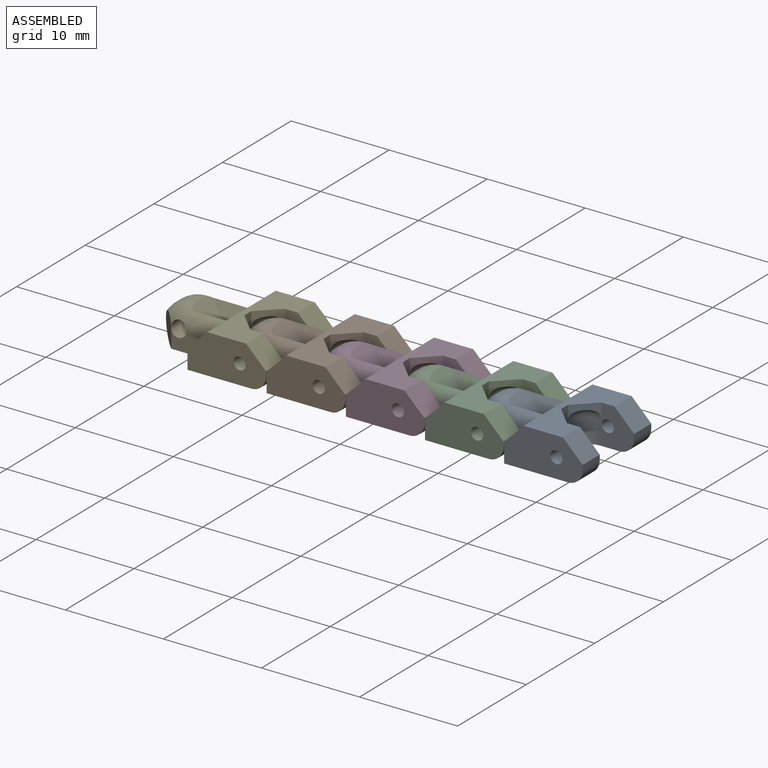
[diagram: assembled view]
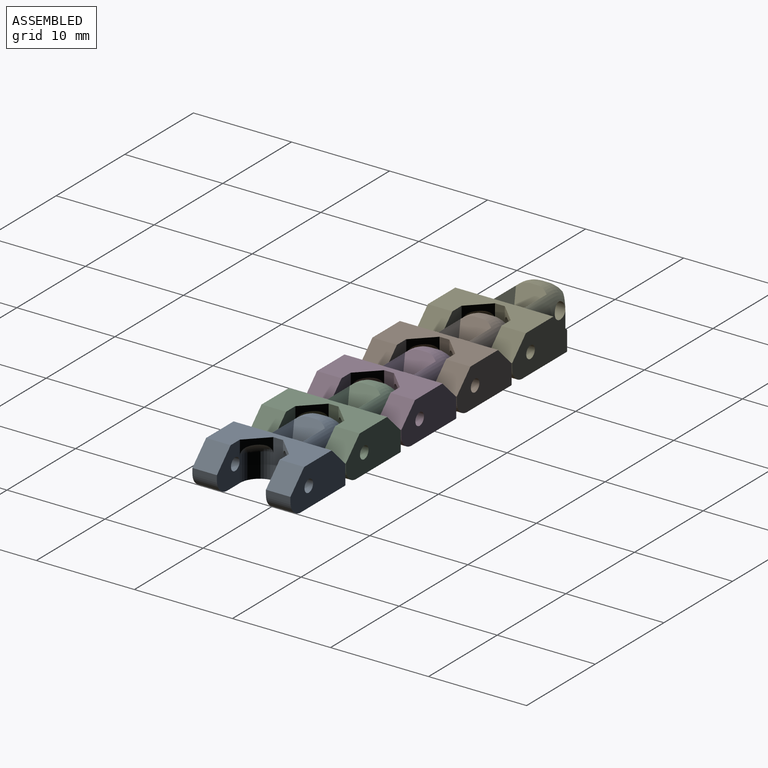
[diagram: assembled view, second angle]
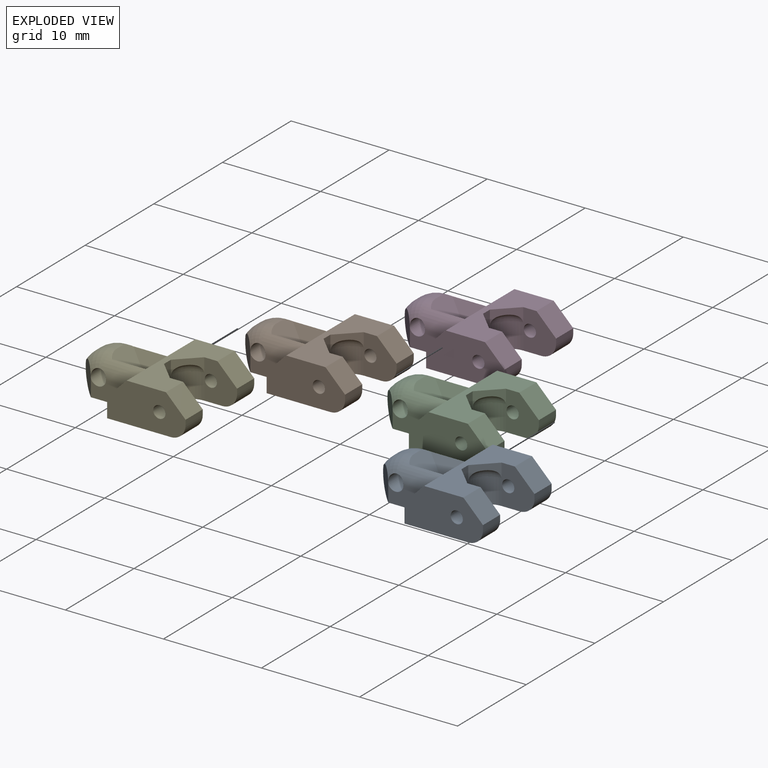
[diagram: exploded view]
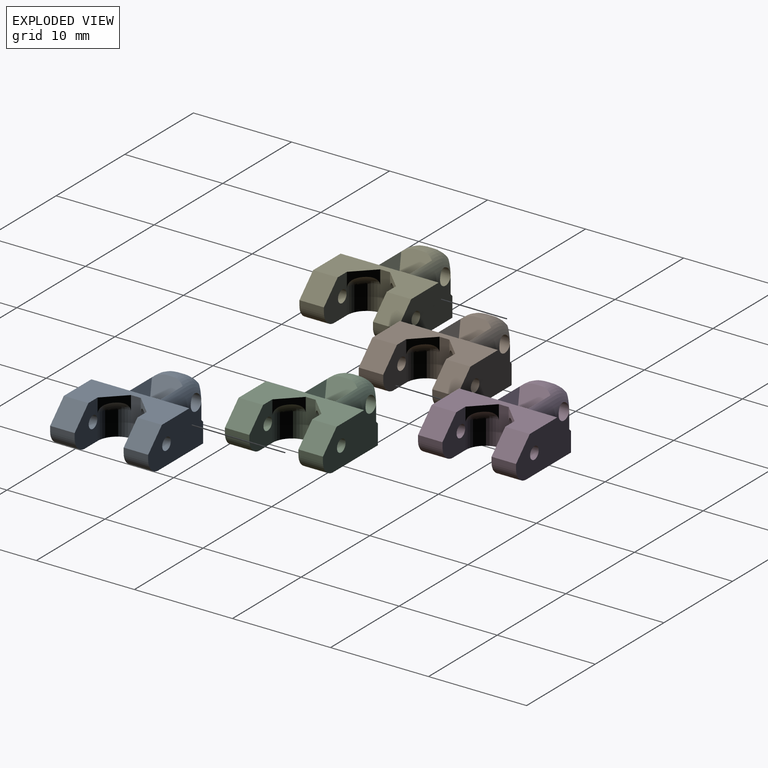
[diagram: exploded view, second angle]
ASSEMBLY  parts=5 mates=4
PART A: 43 faces, bbox 13.3x10.1x4.1 mm
  f0: plane 10x4mm, normal (0,0,1), area 27.2mm2, adj f3,f4,f8,f10,f11,f12,f14,f21
  f1: cylinder r=2mm len=4.46mm, axis (1,0,0), area 6.4mm2, adj f16,f17,f20,f23,f29,f35,f36,f41
  f2: cylinder r=2mm len=4.46mm, axis (-1,0,0), area 6.4mm2, adj f6,f17,f20,f24,f30,f35,f36,f42
  f3: plane 2x2mm, normal (0.71,0.71,0), area 2.2mm2, adj f0,f10,f11,f34
  f4: plane 2x2mm, normal (0.71,-0.71,0), area 2.2mm2, adj f0,f11,f12,f33
  f5: plane 10x10mm, normal (0,0,-1), area 64.1mm2, adj f6,f7,f8,f10,f11,f12,f14,f15
  f6: plane 3.5x2mm, normal (0,-1,0), area 6mm2, adj f2,f5,f7,f20,f26
  f7: plane 2.63x2mm, normal (-1,0,0), area 5.3mm2, adj f5,f6,f8,f24
  f8: plane 8x4mm, normal (0,-1,0), area 26.3mm2, adj f0,f5,f7,f9,f19,f22,f24,f39
  f9: plane 2.5x0.5mm, normal (1,0,0), area 1.2mm2, adj f8,f10,f22,f39
  f10: plane 4x3.35mm, normal (0,1,0), area 9.7mm2, adj f0,f3,f5,f9,f19,f22,f32,f39
  f11: plane 4x1mm, normal (1,0,0), area 4mm2, adj f0,f3,f4,f5,f31,f32
  f12: plane 4x3.35mm, normal (0,-1,0), area 9.7mm2, adj f0,f4,f5,f13,f18,f21,f31,f40
  f13: plane 2.5x0.5mm, normal (1,0,0), area 1.2mm2, adj f12,f14,f21,f40
  f14: plane 8x4mm, normal (0,1,0), area 26.3mm2, adj f0,f5,f13,f15,f18,f21,f23,f40
  f15: plane 2.63x2mm, normal (-1,0,0), area 5.2mm2, adj f5,f14,f16,f23
  f16: plane 3.5x2mm, normal (0,1,0), area 6mm2, adj f1,f5,f15,f20,f25
  f17: plane 0.75x0.19mm, normal (0,0,1), area 0.1mm2, adj f1,f2,f27,f36
  f18: cylinder r=0.62mm len=2.5mm, axis (0,-1,0), area 9.8mm2, adj f12,f14
  f19: cylinder r=0.62mm len=2.5mm, axis (0,-1,0), area 9.8mm2, adj f8,f10
  f20: cylinder r=0.8mm len=4.75mm, axis (0,-1,0), area 23.4mm2, adj f1,f2,f6,f16,f25,f26,f29,f30
  f21: plane 2.5x2mm, normal (0.71,0,0.71), area 7.1mm2, adj f0,f12,f13,f14
  f22: plane 2.5x2mm, normal (0.71,0,0.71), area 7.1mm2, adj f0,f8,f9,f10
  f23: plane 4.63x2mm, normal (-0.71,0,0.71), area 8.6mm2, adj f0,f1,f14,f15,f35
  f24: plane 4.63x2mm, normal (-0.71,0,0.71), area 8.6mm2, adj f0,f2,f7,f8,f35
  f25: plane 2.9x1.77mm, normal (-0.71,0.71,0), area 5.6mm2, adj f16,f20,f28,f29
  f26: plane 2.9x1.77mm, normal (-0.71,-0.71,0), area 5.6mm2, adj f6,f20,f28,f30
  f27: cylinder r=3mm len=2.4mm, axis (0,1,0), area 2.1mm2, adj f17,f28,f29,f30
  f28: cylinder r=1.75mm len=4.75mm, axis (0,1,0), area 8.3mm2, adj f5,f25,f26,f27,f29,f30
  f29: torus R=1mm, axis (0,1,0), area 5.1mm2, adj f1,f20,f25,f27,f28
  f30: torus R=1mm, axis (0,1,0), area 5.1mm2, adj f2,f20,f26,f27,f28
  f31: cylinder r=2mm len=2.5mm, axis (0,0,-1), area 7.9mm2, adj f5,f11,f12,f33
  f32: cylinder r=2mm len=2.5mm, axis (0,0,-1), area 7.9mm2, adj f5,f10,f11,f34
  f33: torus R=1mm, axis (0,0,-1), area 2.7mm2, adj f4,f31
  f34: torus R=1mm, axis (0,0,-1), area 2.7mm2, adj f3,f32
  f35: plane 3.21x2.25mm, normal (-0.71,0,0.71), area 6.7mm2, adj f0,f1,f2,f23,f24,f36,f37,f38
  f36: plane 3.12x2.16mm, normal (0.71,0,0.71), area 6.7mm2, adj f1,f2,f17,f35,f37,f38,f41,f42
  f37: plane 0.59x0.29mm, normal (0,-1,0), area 0.1mm2, adj f35,f36,f41
  f38: plane 0.59x0.29mm, normal (0,1,0), area 0.1mm2, adj f35,f36,f42
  f39: cylinder r=1.5mm len=2.5mm, axis (0,1,0), area 5.9mm2, adj f5,f8,f9,f10
  f40: cylinder r=1.5mm len=2.5mm, axis (0,1,0), area 5.9mm2, adj f5,f12,f13,f14
  f41: plane 3.53x1.46mm, normal (0,-0.87,0.48), area 3.4mm2, adj f1,f35,f36,f37
  f42: plane 3.53x1.46mm, normal (0,0.87,0.48), area 3.4mm2, adj f2,f35,f36,f38
PART B: same geometry as A
PART C: same geometry as A
PART D: same geometry as A
PART E: same geometry as A
PLACE A t=(24.29,-1.49,1.98)mm
PLACE B t=(0.06,-1.49,1.98)mm fixed
PLACE C t=(16.21,-1.49,1.98)mm
PLACE D t=(8.14,-1.49,1.98)mm
PLACE E rot(axis=(0,1,0),0deg) t=(-8.01,-1.49,1.98)mm
MATE revolute C.f20 <-> D.f18  axis (0,-1,0) through (13.46,-3.86,3.98)mm
MATE revolute D.f20 <-> B.f18  axis (0,-1,0) through (5.39,-3.86,3.98)mm
MATE revolute B.f20 <-> E.f18  axis (0,-1,0) through (-2.69,-3.86,3.98)mm
MATE revolute A.f20 <-> C.f18  axis (0,-1,0) through (21.54,-3.86,3.98)mm
